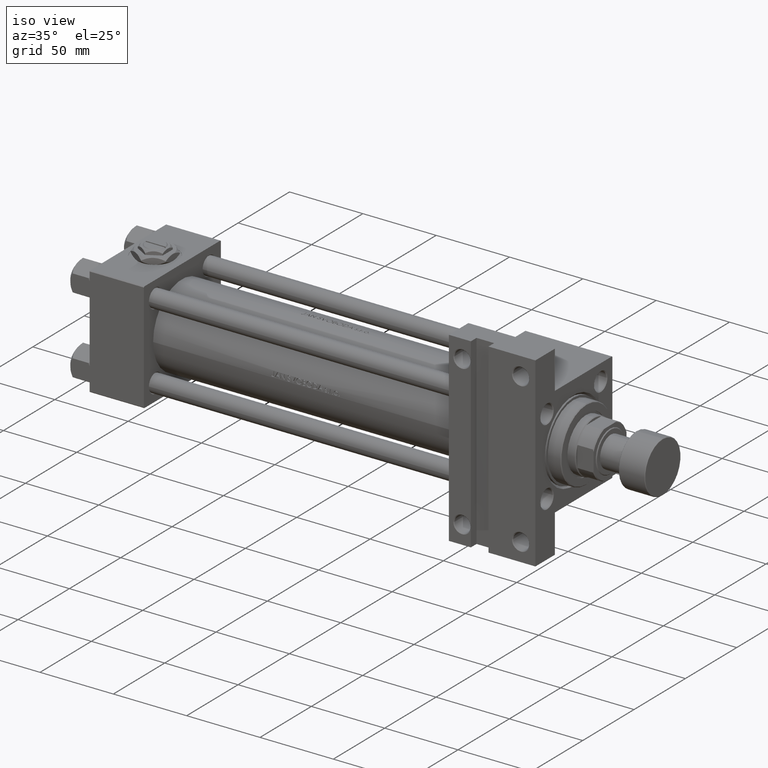
[diagram: clean part render]
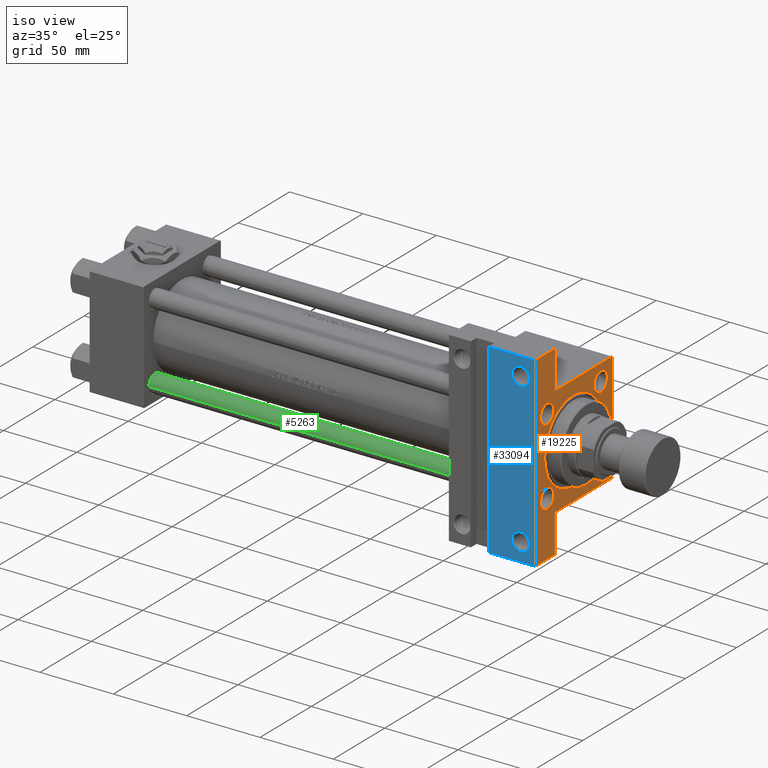
[diagram: same view with three faces highlighted in distinct colors, each labeled with its STEP entity id]
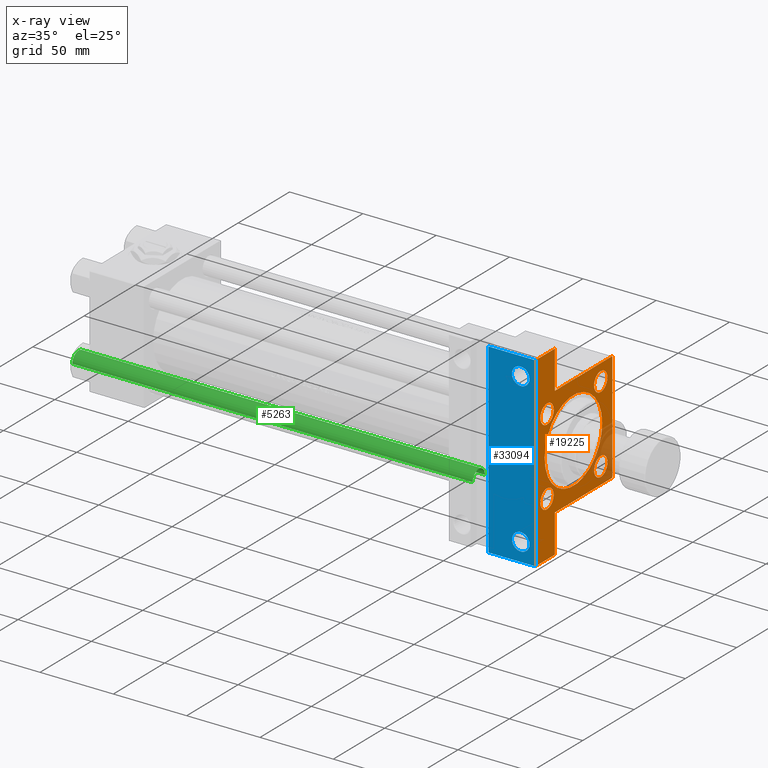
[diagram: x-ray of the same camera — body ghosted, the three highlighted faces saturated]
A machine part, iso view with three faces highlighted in distinct colors.
The next image is the same camera in x-ray (body ghosted, the three faces saturated) — at least one of them is partly hidden behind the body in this view.
Their STEP definitions:

[orange] entity #19225 — the highlighted planar face has unit normal (-1, 0, 0).
#827 = VECTOR ( 'NONE', #34874, 1000.000000000000000 ) ;
#927 = AXIS2_PLACEMENT_3D ( 'NONE', #7260, #4009, #22293 ) ;
#1313 = CARTESIAN_POINT ( 'NONE',  ( 304.0000000000000000, -26.14999999999999147, 26.14999999999999503 ) ) ;
#1666 = VERTEX_POINT ( 'NONE', #12041 ) ;
#1749 = DIRECTION ( 'NONE',  ( 0.000000000000000000, 0.000000000000000000, -1.000000000000000000 ) ) ;
#2296 = VECTOR ( 'NONE', #15000, 1000.000000000000000 ) ;
#2377 = EDGE_LOOP ( 'NONE', ( #21225, #37730 ) ) ;
#2558 = EDGE_CURVE ( 'NONE', #7709, #32317, #34258, .T. ) ;
#2728 = VERTEX_POINT ( 'NONE', #11981 ) ;
#3065 = VECTOR ( 'NONE', #25599, 1000.000000000000000 ) ;
#3672 = CARTESIAN_POINT ( 'NONE',  ( 304.0000000000000000, 26.14999999999999858, -26.15000000000000213 ) ) ;
#3804 = DIRECTION ( 'NONE',  ( 0.000000000000000000, 0.000000000000000000, -1.000000000000000000 ) ) ;
#4009 = DIRECTION ( 'NONE',  ( -1.000000000000000000, -0.000000000000000000, 0.000000000000000000 ) ) ;
#4437 = CARTESIAN_POINT ( 'NONE',  ( 304.0000000000000000, 36.99999999999994316, 37.49999999999999289 ) ) ;
#4994 = CARTESIAN_POINT ( 'NONE',  ( 304.0000000000000000, 37.50000000000000000, 37.49999999999999289 ) ) ;
#5001 = ORIENTED_EDGE ( 'NONE', *, *, #47976, .T. ) ;
#5729 = EDGE_LOOP ( 'NONE', ( #9306, #16226 ) ) ;
#6082 = CARTESIAN_POINT ( 'NONE',  ( 304.0000000000000000, 3.429011037612592037E-15, 27.50000000000002487 ) ) ;
#6099 = LINE ( 'NONE', #17874, #43974 ) ;
#6385 = DIRECTION ( 'NONE',  ( -1.000000000000000000, -0.000000000000000000, 0.000000000000000000 ) ) ;
#6441 = EDGE_CURVE ( 'NONE', #35975, #8277, #10801, .T. ) ;
#6506 = CARTESIAN_POINT ( 'NONE',  ( 304.0000000000000000, 63.49999999999997158, -37.50000000000000000 ) ) ;
#6796 = CARTESIAN_POINT ( 'NONE',  ( 304.0000000000000000, -63.50000000000002842, -18.50000000000000000 ) ) ;
#6979 = CIRCLE ( 'NONE', #23032, 6.499999999999919176 ) ;
#7186 = CARTESIAN_POINT ( 'NONE',  ( 304.0000000000000000, 26.14999999999999858, 26.15000000000000213 ) ) ;
#7214 = ORIENTED_EDGE ( 'NONE', *, *, #48371, .T. ) ;
#7260 = CARTESIAN_POINT ( 'NONE',  ( 304.0000000000000000, 26.14999999999999858, -26.15000000000000213 ) ) ;
#7523 = VERTEX_POINT ( 'NONE', #6506 ) ;
#7709 = VERTEX_POINT ( 'NONE', #35310 ) ;
#7869 = VERTEX_POINT ( 'NONE', #13977 ) ;
#8215 = AXIS2_PLACEMENT_3D ( 'NONE', #43357, #8496, #47839 ) ;
#8277 = VERTEX_POINT ( 'NONE', #22515 ) ;
#8496 = DIRECTION ( 'NONE',  ( -1.000000000000000000, -0.000000000000000000, 0.000000000000000000 ) ) ;
#8744 = FACE_BOUND ( 'NONE', #45570, .T. ) ;
#9306 = ORIENTED_EDGE ( 'NONE', *, *, #38614, .T. ) ;
#9469 = ORIENTED_EDGE ( 'NONE', *, *, #25778, .T. ) ;
#10801 = LINE ( 'NONE', #6796, #3065 ) ;
#11010 = EDGE_CURVE ( 'NONE', #7869, #33544, #23358, .T. ) ;
#11281 = AXIS2_PLACEMENT_3D ( 'NONE', #33208, #32963, #44752 ) ;
#11332 = CIRCLE ( 'NONE', #34553, 28.00000000000002487 ) ;
#11432 = EDGE_CURVE ( 'NONE', #11832, #22544, #41679, .T. ) ;
#11832 = VERTEX_POINT ( 'NONE', #20430 ) ;
#11981 = CARTESIAN_POINT ( 'NONE',  ( 304.0000000000000000, 37.50000000000000000, 36.99999999999993605 ) ) ;
#12041 = CARTESIAN_POINT ( 'NONE',  ( 304.0000000000000000, 63.49999999999997158, -18.50000000000000000 ) ) ;
#12562 = VERTEX_POINT ( 'NONE', #13535 ) ;
#12692 = LINE ( 'NONE', #27960, #44116 ) ;
#13321 = VERTEX_POINT ( 'NONE', #41844 ) ;
#13497 = ORIENTED_EDGE ( 'NONE', *, *, #18039, .T. ) ;
#13535 = CARTESIAN_POINT ( 'NONE',  ( 304.0000000000000000, 37.49999999999995026, -18.50000000000000000 ) ) ;
#13582 = DIRECTION ( 'NONE',  ( 0.000000000000000000, 0.000000000000000000, 1.000000000000000000 ) ) ;
#13977 = CARTESIAN_POINT ( 'NONE',  ( 304.0000000000000000, -37.00000000000000000, 37.49999999999997868 ) ) ;
#14367 = AXIS2_PLACEMENT_3D ( 'NONE', #33021, #46791, #23239 ) ;
#14428 = EDGE_CURVE ( 'NONE', #22544, #11832, #11332, .T. ) ;
#14560 = ORIENTED_EDGE ( 'NONE', *, *, #40077, .F. ) ;
#14667 = ORIENTED_EDGE ( 'NONE', *, *, #43178, .T. ) ;
#14833 = CARTESIAN_POINT ( 'NONE',  ( 304.0000000000000000, 0.000000000000000000, -0.5000000000000004441 ) ) ;
#15000 = DIRECTION ( 'NONE',  ( 0.000000000000000000, -1.000000000000000000, 0.000000000000000000 ) ) ;
#15205 = EDGE_CURVE ( 'NONE', #2728, #34199, #38787, .T. ) ;
#15703 = DIRECTION ( 'NONE',  ( 0.000000000000000000, 0.000000000000000000, 1.000000000000000000 ) ) ;
#16226 = ORIENTED_EDGE ( 'NONE', *, *, #2558, .T. ) ;
#16965 = ORIENTED_EDGE ( 'NONE', *, *, #30533, .F. ) ;
#17257 = FACE_BOUND ( 'NONE', #5729, .T. ) ;
#17661 = CARTESIAN_POINT ( 'NONE',  ( 304.0000000000000000, -26.14999999999999147, 26.14999999999999503 ) ) ;
#17829 = DIRECTION ( 'NONE',  ( -1.000000000000000000, -0.000000000000000000, 0.000000000000000000 ) ) ;
#17874 = CARTESIAN_POINT ( 'NONE',  ( 304.0000000000000000, 37.50000000000000000, 37.49999999999999289 ) ) ;
#18039 = EDGE_CURVE ( 'NONE', #33544, #35975, #23721, .T. ) ;
#18910 = AXIS2_PLACEMENT_3D ( 'NONE', #3672, #18953, #15703 ) ;
#18953 = DIRECTION ( 'NONE',  ( -1.000000000000000000, -0.000000000000000000, 0.000000000000000000 ) ) ;
#19225 = ADVANCED_FACE ( 'NONE', ( #39356, #17257, #8744, #27783, #46859, #28520 ), #32303, .F. ) ;
#19236 = CIRCLE ( 'NONE', #33603, 6.500000000000002665 ) ;
#20097 = CIRCLE ( 'NONE', #11281, 6.500000000000002665 ) ;
#20430 = CARTESIAN_POINT ( 'NONE',  ( 304.0000000000000000, 0.000000000000000000, -28.50000000000002487 ) ) ;
#20734 = CIRCLE ( 'NONE', #14367, 6.500000000000002665 ) ;
#20785 = LINE ( 'NONE', #32316, #21232 ) ;
#21225 = ORIENTED_EDGE ( 'NONE', *, *, #35659, .T. ) ;
#21232 = VECTOR ( 'NONE', #1749, 1000.000000000000000 ) ;
#21414 = DIRECTION ( 'NONE',  ( 0.000000000000000000, 0.000000000000000000, 1.000000000000000000 ) ) ;
#21889 = VECTOR ( 'NONE', #23483, 1000.000000000000000 ) ;
#22293 = DIRECTION ( 'NONE',  ( 0.000000000000000000, 0.000000000000000000, 1.000000000000000000 ) ) ;
#22515 = CARTESIAN_POINT ( 'NONE',  ( 304.0000000000000000, -63.50000000000002842, -18.50000000000000000 ) ) ;
#22544 = VERTEX_POINT ( 'NONE', #6082 ) ;
#22608 = CARTESIAN_POINT ( 'NONE',  ( 304.0000000000000000, 26.14999999999999858, -32.65000000000001279 ) ) ;
#22621 = CARTESIAN_POINT ( 'NONE',  ( 304.0000000000000000, 26.14999999999999858, -19.64999999999999858 ) ) ;
#22851 = DIRECTION ( 'NONE',  ( 0.000000000000000000, 0.000000000000000000, 1.000000000000000000 ) ) ;
#23032 = AXIS2_PLACEMENT_3D ( 'NONE', #17661, #6385, #21414 ) ;
#23239 = DIRECTION ( 'NONE',  ( 0.000000000000000000, 0.000000000000000000, 1.000000000000000000 ) ) ;
#23358 = LINE ( 'NONE', #38663, #827 ) ;
#23483 = DIRECTION ( 'NONE',  ( 0.000000000000000000, -9.251858538542972814E-17, -1.000000000000000000 ) ) ;
#23721 = LINE ( 'NONE', #27958, #21889 ) ;
#23964 = CARTESIAN_POINT ( 'NONE',  ( 304.0000000000000000, -26.15000000000000213, -19.64999999999999858 ) ) ;
#24389 = ORIENTED_EDGE ( 'NONE', *, *, #6441, .T. ) ;
#24806 = CIRCLE ( 'NONE', #927, 6.500000000000002665 ) ;
#25280 = AXIS2_PLACEMENT_3D ( 'NONE', #7186, #34240, #45284 ) ;
#25324 = DIRECTION ( 'NONE',  ( -1.000000000000000000, -0.000000000000000000, 0.000000000000000000 ) ) ;
#25599 = DIRECTION ( 'NONE',  ( -0.000000000000000000, -1.000000000000000000, -0.000000000000000000 ) ) ;
#25667 = AXIS2_PLACEMENT_3D ( 'NONE', #32016, #31273, #35535 ) ;
#25778 = EDGE_CURVE ( 'NONE', #8277, #42742, #20785, .T. ) ;
#27783 = FACE_BOUND ( 'NONE', #32422, .T. ) ;
#27958 = CARTESIAN_POINT ( 'NONE',  ( 304.0000000000000000, -37.50000000000000000, 37.49999999999997868 ) ) ;
#27960 = CARTESIAN_POINT ( 'NONE',  ( 304.0000000000000000, 63.49999999999997158, -18.50000000000000000 ) ) ;
#28485 = CIRCLE ( 'NONE', #25280, 6.500000000000002665 ) ;
#28520 = FACE_OUTER_BOUND ( 'NONE', #33633, .T. ) ;
#29954 = CARTESIAN_POINT ( 'NONE',  ( 304.0000000000000000, -26.14999999999999147, 19.65000000000007674 ) ) ;
#30105 = DIRECTION ( 'NONE',  ( -1.000000000000000000, -0.000000000000000000, 0.000000000000000000 ) ) ;
#30234 = VECTOR ( 'NONE', #48032, 1000.000000000000000 ) ;
#30533 = EDGE_CURVE ( 'NONE', #2728, #12562, #43088, .T. ) ;
#30683 = CARTESIAN_POINT ( 'NONE',  ( 304.0000000000000000, -63.50000000000002842, -37.50000000000000000 ) ) ;
#31273 = DIRECTION ( 'NONE',  ( -1.000000000000000000, -0.000000000000000000, 0.000000000000000000 ) ) ;
#31475 = VERTEX_POINT ( 'NONE', #22621 ) ;
#31894 = CARTESIAN_POINT ( 'NONE',  ( 304.0000000000000000, -37.50000000000000000, 36.99999999999995026 ) ) ;
#32016 = CARTESIAN_POINT ( 'NONE',  ( 304.0000000000000000, 0.000000000000000000, -0.5000000000000004441 ) ) ;
#32303 = PLANE ( 'NONE',  #8215 ) ;
#32316 = CARTESIAN_POINT ( 'NONE',  ( 304.0000000000000000, -63.50000000000002842, -18.50000000000000000 ) ) ;
#32317 = VERTEX_POINT ( 'NONE', #29954 ) ;
#32422 = EDGE_LOOP ( 'NONE', ( #7214, #36483 ) ) ;
#32963 = DIRECTION ( 'NONE',  ( -1.000000000000000000, -0.000000000000000000, 0.000000000000000000 ) ) ;
#33021 = CARTESIAN_POINT ( 'NONE',  ( 304.0000000000000000, -26.15000000000000213, -26.15000000000000213 ) ) ;
#33208 = CARTESIAN_POINT ( 'NONE',  ( 304.0000000000000000, -26.15000000000000213, -26.15000000000000213 ) ) ;
#33214 = ORIENTED_EDGE ( 'NONE', *, *, #48140, .T. ) ;
#33331 = CARTESIAN_POINT ( 'NONE',  ( 304.0000000000000000, 26.14999999999999858, 26.15000000000000213 ) ) ;
#33467 = AXIS2_PLACEMENT_3D ( 'NONE', #1313, #17829, #13582 ) ;
#33544 = VERTEX_POINT ( 'NONE', #31894 ) ;
#33603 = AXIS2_PLACEMENT_3D ( 'NONE', #33331, #25324, #40634 ) ;
#33633 = EDGE_LOOP ( 'NONE', ( #16965, #38296, #49189, #42497, #13497, #24389, #9469, #39083, #14560, #5001 ) ) ;
#34087 = EDGE_CURVE ( 'NONE', #7523, #42742, #42084, .T. ) ;
#34199 = VERTEX_POINT ( 'NONE', #42337 ) ;
#34240 = DIRECTION ( 'NONE',  ( -1.000000000000000000, -0.000000000000000000, 0.000000000000000000 ) ) ;
#34258 = CIRCLE ( 'NONE', #33467, 6.499999999999919176 ) ;
#34553 = AXIS2_PLACEMENT_3D ( 'NONE', #14833, #30105, #22851 ) ;
#34874 = DIRECTION ( 'NONE',  ( -0.000000000000000000, -0.7071067811865279218, -0.7071067811865672237 ) ) ;
#35000 = DIRECTION ( 'NONE',  ( 0.000000000000000000, -0.7071067811865474617, 0.7071067811865474617 ) ) ;
#35310 = CARTESIAN_POINT ( 'NONE',  ( 304.0000000000000000, -26.14999999999999147, 32.64999999999991331 ) ) ;
#35535 = DIRECTION ( 'NONE',  ( 0.000000000000000000, 0.000000000000000000, 1.000000000000000000 ) ) ;
#35644 = EDGE_CURVE ( 'NONE', #31475, #44709, #44510, .T. ) ;
#35659 = EDGE_CURVE ( 'NONE', #13321, #38872, #28485, .T. ) ;
#35768 = LINE ( 'NONE', #44035, #30234 ) ;
#35975 = VERTEX_POINT ( 'NONE', #38730 ) ;
#36483 = ORIENTED_EDGE ( 'NONE', *, *, #35644, .T. ) ;
#37730 = ORIENTED_EDGE ( 'NONE', *, *, #45081, .T. ) ;
#38296 = ORIENTED_EDGE ( 'NONE', *, *, #15205, .T. ) ;
#38614 = EDGE_CURVE ( 'NONE', #32317, #7709, #6979, .T. ) ;
#38663 = CARTESIAN_POINT ( 'NONE',  ( 304.0000000000000000, -37.50000000000000000, 36.99999999999995026 ) ) ;
#38730 = CARTESIAN_POINT ( 'NONE',  ( 304.0000000000000000, -37.50000000000000711, -18.50000000000000355 ) ) ;
#38787 = LINE ( 'NONE', #4437, #47416 ) ;
#38831 = CARTESIAN_POINT ( 'NONE',  ( 304.0000000000000000, 37.50000000000000000, -37.50000000000000000 ) ) ;
#38872 = VERTEX_POINT ( 'NONE', #48128 ) ;
#39072 = VECTOR ( 'NONE', #3804, 1000.000000000000000 ) ;
#39083 = ORIENTED_EDGE ( 'NONE', *, *, #34087, .F. ) ;
#39356 = FACE_BOUND ( 'NONE', #2377, .T. ) ;
#39765 = DIRECTION ( 'NONE',  ( 0.000000000000000000, -1.000000000000000000, 0.000000000000000000 ) ) ;
#40077 = EDGE_CURVE ( 'NONE', #1666, #7523, #35768, .T. ) ;
#40634 = DIRECTION ( 'NONE',  ( 0.000000000000000000, 0.000000000000000000, 1.000000000000000000 ) ) ;
#41679 = CIRCLE ( 'NONE', #25667, 28.00000000000002487 ) ;
#41844 = CARTESIAN_POINT ( 'NONE',  ( 304.0000000000000000, 26.14999999999999858, 19.65000000000000213 ) ) ;
#42084 = LINE ( 'NONE', #38831, #2296 ) ;
#42337 = CARTESIAN_POINT ( 'NONE',  ( 304.0000000000000000, 36.99999999999994316, 37.49999999999999289 ) ) ;
#42452 = VERTEX_POINT ( 'NONE', #23964 ) ;
#42497 = ORIENTED_EDGE ( 'NONE', *, *, #11010, .T. ) ;
#42742 = VERTEX_POINT ( 'NONE', #30683 ) ;
#43088 = LINE ( 'NONE', #4994, #39072 ) ;
#43178 = EDGE_CURVE ( 'NONE', #42452, #46111, #20734, .T. ) ;
#43357 = CARTESIAN_POINT ( 'NONE',  ( 304.0000000000000000, 0.000000000000000000, 0.000000000000000000 ) ) ;
#43630 = EDGE_CURVE ( 'NONE', #34199, #7869, #6099, .T. ) ;
#43864 = ORIENTED_EDGE ( 'NONE', *, *, #14428, .T. ) ;
#43974 = VECTOR ( 'NONE', #48215, 1000.000000000000000 ) ;
#44035 = CARTESIAN_POINT ( 'NONE',  ( 304.0000000000000000, 63.49999999999997158, -18.50000000000000000 ) ) ;
#44116 = VECTOR ( 'NONE', #39765, 1000.000000000000000 ) ;
#44510 = CIRCLE ( 'NONE', #18910, 6.500000000000002665 ) ;
#44709 = VERTEX_POINT ( 'NONE', #22608 ) ;
#44752 = DIRECTION ( 'NONE',  ( 0.000000000000000000, 0.000000000000000000, 1.000000000000000000 ) ) ;
#45081 = EDGE_CURVE ( 'NONE', #38872, #13321, #19236, .T. ) ;
#45284 = DIRECTION ( 'NONE',  ( 0.000000000000000000, 0.000000000000000000, 1.000000000000000000 ) ) ;
#45570 = EDGE_LOOP ( 'NONE', ( #33214, #14667 ) ) ;
#46111 = VERTEX_POINT ( 'NONE', #48880 ) ;
#46791 = DIRECTION ( 'NONE',  ( -1.000000000000000000, -0.000000000000000000, 0.000000000000000000 ) ) ;
#46859 = FACE_BOUND ( 'NONE', #48788, .T. ) ;
#47416 = VECTOR ( 'NONE', #35000, 1000.000000000000114 ) ;
#47839 = DIRECTION ( 'NONE',  ( 0.000000000000000000, 0.000000000000000000, 1.000000000000000000 ) ) ;
#47976 = EDGE_CURVE ( 'NONE', #1666, #12562, #12692, .T. ) ;
#48032 = DIRECTION ( 'NONE',  ( 0.000000000000000000, 0.000000000000000000, -1.000000000000000000 ) ) ;
#48128 = CARTESIAN_POINT ( 'NONE',  ( 304.0000000000000000, 26.14999999999999858, 32.65000000000000568 ) ) ;
#48140 = EDGE_CURVE ( 'NONE', #46111, #42452, #20097, .T. ) ;
#48215 = DIRECTION ( 'NONE',  ( 0.000000000000000000, -1.000000000000000000, -1.850371707708594316E-16 ) ) ;
#48314 = ORIENTED_EDGE ( 'NONE', *, *, #11432, .T. ) ;
#48371 = EDGE_CURVE ( 'NONE', #44709, #31475, #24806, .T. ) ;
#48788 = EDGE_LOOP ( 'NONE', ( #48314, #43864 ) ) ;
#48880 = CARTESIAN_POINT ( 'NONE',  ( 304.0000000000000000, -26.15000000000000213, -32.65000000000001279 ) ) ;
#49189 = ORIENTED_EDGE ( 'NONE', *, *, #43630, .T. ) ;

[blue] entity #33094 — the highlighted planar face has unit normal (0, -1, 0).
#635 = VECTOR ( 'NONE', #9626, 1000.000000000000000 ) ;
#2115 = DIRECTION ( 'NONE',  ( 1.000000000000000000, 0.000000000000000000, 0.000000000000000000 ) ) ;
#2133 = AXIS2_PLACEMENT_3D ( 'NONE', #45608, #23307, #38607 ) ;
#2296 = VECTOR ( 'NONE', #15000, 1000.000000000000000 ) ;
#3499 = ORIENTED_EDGE ( 'NONE', *, *, #24377, .T. ) ;
#3679 = CARTESIAN_POINT ( 'NONE',  ( 288.0004999999998745, -51.00000000000000000, -37.50000000000000000 ) ) ;
#6506 = CARTESIAN_POINT ( 'NONE',  ( 304.0000000000000000, 63.49999999999997158, -37.50000000000000000 ) ) ;
#7523 = VERTEX_POINT ( 'NONE', #6506 ) ;
#8704 = FACE_OUTER_BOUND ( 'NONE', #45094, .T. ) ;
#9570 = AXIS2_PLACEMENT_3D ( 'NONE', #36283, #32990, #10673 ) ;
#9626 = DIRECTION ( 'NONE',  ( -1.000000000000000000, -0.000000000000000000, -0.000000000000000000 ) ) ;
#9858 = ORIENTED_EDGE ( 'NONE', *, *, #32680, .T. ) ;
#10090 = DIRECTION ( 'NONE',  ( -1.000000000000000000, 0.000000000000000000, 0.000000000000000000 ) ) ;
#10673 = DIRECTION ( 'NONE',  ( -1.000000000000000000, 0.000000000000000000, -0.000000000000000000 ) ) ;
#11796 = DIRECTION ( 'NONE',  ( -1.000000000000000000, 0.000000000000000000, 0.000000000000000000 ) ) ;
#11989 = EDGE_CURVE ( 'NONE', #34384, #7523, #43737, .T. ) ;
#13290 = EDGE_CURVE ( 'NONE', #42125, #36422, #42552, .T. ) ;
#13452 = CARTESIAN_POINT ( 'NONE',  ( 299.9994999999999550, 51.00000000000000000, -37.50000000000000000 ) ) ;
#13882 = LINE ( 'NONE', #36690, #44857 ) ;
#14273 = CARTESIAN_POINT ( 'NONE',  ( 293.9999999999999432, -51.00000000000000000, -37.50000000000000000 ) ) ;
#14809 = ORIENTED_EDGE ( 'NONE', *, *, #11989, .T. ) ;
#15000 = DIRECTION ( 'NONE',  ( 0.000000000000000000, -1.000000000000000000, 0.000000000000000000 ) ) ;
#15303 = CARTESIAN_POINT ( 'NONE',  ( 293.9999999999999432, 51.00000000000000000, -37.50000000000000000 ) ) ;
#19525 = ORIENTED_EDGE ( 'NONE', *, *, #13290, .T. ) ;
#19727 = ORIENTED_EDGE ( 'NONE', *, *, #36225, .T. ) ;
#20241 = PLANE ( 'NONE',  #9570 ) ;
#20926 = AXIS2_PLACEMENT_3D ( 'NONE', #14273, #37578, #33552 ) ;
#21949 = AXIS2_PLACEMENT_3D ( 'NONE', #29144, #44455, #10090 ) ;
#22737 = CIRCLE ( 'NONE', #21949, 5.999500000000046462 ) ;
#23201 = LINE ( 'NONE', #35466, #635 ) ;
#23307 = DIRECTION ( 'NONE',  ( -0.000000000000000000, -0.000000000000000000, 1.000000000000000000 ) ) ;
#23508 = VERTEX_POINT ( 'NONE', #47408 ) ;
#24008 = FACE_BOUND ( 'NONE', #46841, .T. ) ;
#24377 = EDGE_CURVE ( 'NONE', #36422, #42125, #22737, .T. ) ;
#24673 = CARTESIAN_POINT ( 'NONE',  ( 245.0000000000000284, 63.49999999999997158, -37.50000000000000000 ) ) ;
#24789 = VERTEX_POINT ( 'NONE', #43359 ) ;
#26364 = AXIS2_PLACEMENT_3D ( 'NONE', #15303, #42874, #11796 ) ;
#29144 = CARTESIAN_POINT ( 'NONE',  ( 293.9999999999999432, -51.00000000000000000, -37.50000000000000000 ) ) ;
#30683 = CARTESIAN_POINT ( 'NONE',  ( 304.0000000000000000, -63.50000000000002842, -37.50000000000000000 ) ) ;
#32520 = CARTESIAN_POINT ( 'NONE',  ( 299.9994999999999550, -51.00000000000000000, -37.50000000000000000 ) ) ;
#32636 = EDGE_LOOP ( 'NONE', ( #9858, #19727 ) ) ;
#32680 = EDGE_CURVE ( 'NONE', #23508, #40736, #39218, .T. ) ;
#32863 = ORIENTED_EDGE ( 'NONE', *, *, #49104, .F. ) ;
#32990 = DIRECTION ( 'NONE',  ( 0.000000000000000000, 0.000000000000000000, -1.000000000000000000 ) ) ;
#33094 = ADVANCED_FACE ( 'NONE', ( #8704, #24008, #47799 ), #20241, .T. ) ;
#33552 = DIRECTION ( 'NONE',  ( -1.000000000000000000, 0.000000000000000000, 0.000000000000000000 ) ) ;
#33948 = ORIENTED_EDGE ( 'NONE', *, *, #34087, .T. ) ;
#34087 = EDGE_CURVE ( 'NONE', #7523, #42742, #42084, .T. ) ;
#34384 = VERTEX_POINT ( 'NONE', #36788 ) ;
#35466 = CARTESIAN_POINT ( 'NONE',  ( 245.0000000000000000, -63.50000000000002842, -37.50000000000000000 ) ) ;
#36112 = VECTOR ( 'NONE', #2115, 1000.000000000000000 ) ;
#36225 = EDGE_CURVE ( 'NONE', #40736, #23508, #46157, .T. ) ;
#36283 = CARTESIAN_POINT ( 'NONE',  ( 304.0000000000000000, 37.50000000000000000, -37.50000000000000000 ) ) ;
#36422 = VERTEX_POINT ( 'NONE', #3679 ) ;
#36690 = CARTESIAN_POINT ( 'NONE',  ( 272.0000000000000000, -63.49999999999995737, -37.50000000000000000 ) ) ;
#36788 = CARTESIAN_POINT ( 'NONE',  ( 272.0000000000000000, 63.49999999999997158, -37.50000000000000000 ) ) ;
#37578 = DIRECTION ( 'NONE',  ( -0.000000000000000000, -0.000000000000000000, 1.000000000000000000 ) ) ;
#38607 = DIRECTION ( 'NONE',  ( -1.000000000000000000, 0.000000000000000000, 0.000000000000000000 ) ) ;
#38831 = CARTESIAN_POINT ( 'NONE',  ( 304.0000000000000000, 37.50000000000000000, -37.50000000000000000 ) ) ;
#39218 = CIRCLE ( 'NONE', #26364, 5.999500000000046462 ) ;
#40239 = EDGE_CURVE ( 'NONE', #42742, #24789, #23201, .T. ) ;
#40736 = VERTEX_POINT ( 'NONE', #13452 ) ;
#41677 = DIRECTION ( 'NONE',  ( -0.000000000000000000, -1.000000000000000000, -0.000000000000000000 ) ) ;
#42084 = LINE ( 'NONE', #38831, #2296 ) ;
#42125 = VERTEX_POINT ( 'NONE', #32520 ) ;
#42552 = CIRCLE ( 'NONE', #20926, 5.999500000000046462 ) ;
#42742 = VERTEX_POINT ( 'NONE', #30683 ) ;
#42874 = DIRECTION ( 'NONE',  ( -0.000000000000000000, -0.000000000000000000, 1.000000000000000000 ) ) ;
#43359 = CARTESIAN_POINT ( 'NONE',  ( 272.0000000000000000, -63.49999999999995737, -37.50000000000000000 ) ) ;
#43737 = LINE ( 'NONE', #24673, #36112 ) ;
#44455 = DIRECTION ( 'NONE',  ( -0.000000000000000000, -0.000000000000000000, 1.000000000000000000 ) ) ;
#44857 = VECTOR ( 'NONE', #41677, 1000.000000000000000 ) ;
#45094 = EDGE_LOOP ( 'NONE', ( #32863, #14809, #33948, #45106 ) ) ;
#45106 = ORIENTED_EDGE ( 'NONE', *, *, #40239, .T. ) ;
#45608 = CARTESIAN_POINT ( 'NONE',  ( 293.9999999999999432, 51.00000000000000000, -37.50000000000000000 ) ) ;
#46157 = CIRCLE ( 'NONE', #2133, 5.999500000000046462 ) ;
#46841 = EDGE_LOOP ( 'NONE', ( #3499, #19525 ) ) ;
#47408 = CARTESIAN_POINT ( 'NONE',  ( 288.0004999999998745, 51.00000000000000000, -37.50000000000000000 ) ) ;
#47799 = FACE_BOUND ( 'NONE', #32636, .T. ) ;
#49104 = EDGE_CURVE ( 'NONE', #34384, #24789, #13882, .T. ) ;

[green] entity #5263 — the highlighted cylindrical surface (edge-blend (fillet) strip) has radius 6 mm, axis along (1, 0, 0).
#60 = EDGE_CURVE ( 'NONE', #27662, #5077, #37429, .T. ) ;
#2040 = EDGE_CURVE ( 'NONE', #27662, #37582, #33221, .T. ) ;
#4856 = ORIENTED_EDGE ( 'NONE', *, *, #60, .T. ) ;
#5077 = VERTEX_POINT ( 'NONE', #40153 ) ;
#5263 = ADVANCED_FACE ( 'NONE', ( #17749 ), #47609, .T. ) ;
#5622 = CARTESIAN_POINT ( 'NONE',  ( 0.000000000000000000, 0.000000000000000000, 273.5000000000000000 ) ) ;
#5989 = CARTESIAN_POINT ( 'NONE',  ( 0.000000000000000000, 0.000000000000000000, 274.0000000000000000 ) ) ;
#6721 = EDGE_CURVE ( 'NONE', #5077, #43821, #21051, .T. ) ;
#8314 = CARTESIAN_POINT ( 'NONE',  ( 6.000000000000000888, 7.347880794884120722E-16, 0.5000000000000559552 ) ) ;
#13534 = DIRECTION ( 'NONE',  ( -0.000000000000000000, -0.000000000000000000, -1.000000000000000000 ) ) ;
#14018 = CARTESIAN_POINT ( 'NONE',  ( -6.000000000000000888, 0.000000000000000000, 273.5000000000000000 ) ) ;
#17019 = DIRECTION ( 'NONE',  ( -1.000000000000000000, 0.000000000000000000, 0.000000000000000000 ) ) ;
#17049 = CARTESIAN_POINT ( 'NONE',  ( 0.000000000000000000, 0.000000000000000000, 0.5000000000000559552 ) ) ;
#17622 = DIRECTION ( 'NONE',  ( 0.000000000000000000, 0.000000000000000000, -1.000000000000000000 ) ) ;
#17749 = FACE_OUTER_BOUND ( 'NONE', #23781, .T. ) ;
#19854 = VECTOR ( 'NONE', #44031, 1000.000000000000000 ) ;
#20549 = CARTESIAN_POINT ( 'NONE',  ( 6.000000000000000888, 7.347880794884120722E-16, 274.0000000000000000 ) ) ;
#21051 = LINE ( 'NONE', #20549, #33500 ) ;
#21195 = EDGE_CURVE ( 'NONE', #43821, #37582, #37849, .T. ) ;
#23781 = EDGE_LOOP ( 'NONE', ( #4856, #36555, #30182, #44032 ) ) ;
#27460 = AXIS2_PLACEMENT_3D ( 'NONE', #17049, #32335, #47636 ) ;
#27662 = VERTEX_POINT ( 'NONE', #14018 ) ;
#30182 = ORIENTED_EDGE ( 'NONE', *, *, #21195, .T. ) ;
#31987 = AXIS2_PLACEMENT_3D ( 'NONE', #5989, #40091, #17019 ) ;
#32335 = DIRECTION ( 'NONE',  ( -0.000000000000000000, -0.000000000000000000, 1.000000000000000000 ) ) ;
#32658 = DIRECTION ( 'NONE',  ( 1.000000000000000000, 0.000000000000000000, 0.000000000000000000 ) ) ;
#32978 = CARTESIAN_POINT ( 'NONE',  ( -6.000000000000000888, 0.000000000000000000, 274.0000000000000000 ) ) ;
#33221 = LINE ( 'NONE', #32978, #19854 ) ;
#33500 = VECTOR ( 'NONE', #13534, 1000.000000000000000 ) ;
#36555 = ORIENTED_EDGE ( 'NONE', *, *, #6721, .T. ) ;
#37429 = CIRCLE ( 'NONE', #41391, 6.000000000000000888 ) ;
#37582 = VERTEX_POINT ( 'NONE', #41830 ) ;
#37849 = CIRCLE ( 'NONE', #27460, 6.000000000000000888 ) ;
#40091 = DIRECTION ( 'NONE',  ( -0.000000000000000000, -0.000000000000000000, -1.000000000000000000 ) ) ;
#40153 = CARTESIAN_POINT ( 'NONE',  ( 6.000000000000000888, 7.347880794884120722E-16, 273.5000000000000000 ) ) ;
#41391 = AXIS2_PLACEMENT_3D ( 'NONE', #5622, #17622, #32658 ) ;
#41830 = CARTESIAN_POINT ( 'NONE',  ( -6.000000000000000888, 0.000000000000000000, 0.5000000000000559552 ) ) ;
#43821 = VERTEX_POINT ( 'NONE', #8314 ) ;
#44031 = DIRECTION ( 'NONE',  ( -0.000000000000000000, -0.000000000000000000, -1.000000000000000000 ) ) ;
#44032 = ORIENTED_EDGE ( 'NONE', *, *, #2040, .F. ) ;
#47609 = CYLINDRICAL_SURFACE ( 'NONE', #31987, 6.000000000000000888 ) ;
#47636 = DIRECTION ( 'NONE',  ( 1.000000000000000000, 0.000000000000000000, 0.000000000000000000 ) ) ;